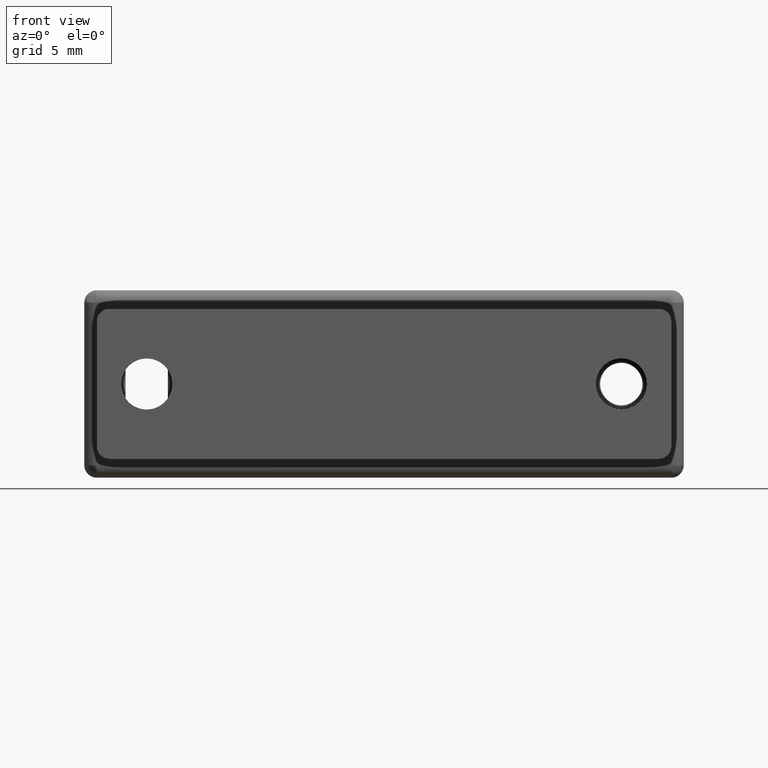
[diagram: clean part render]
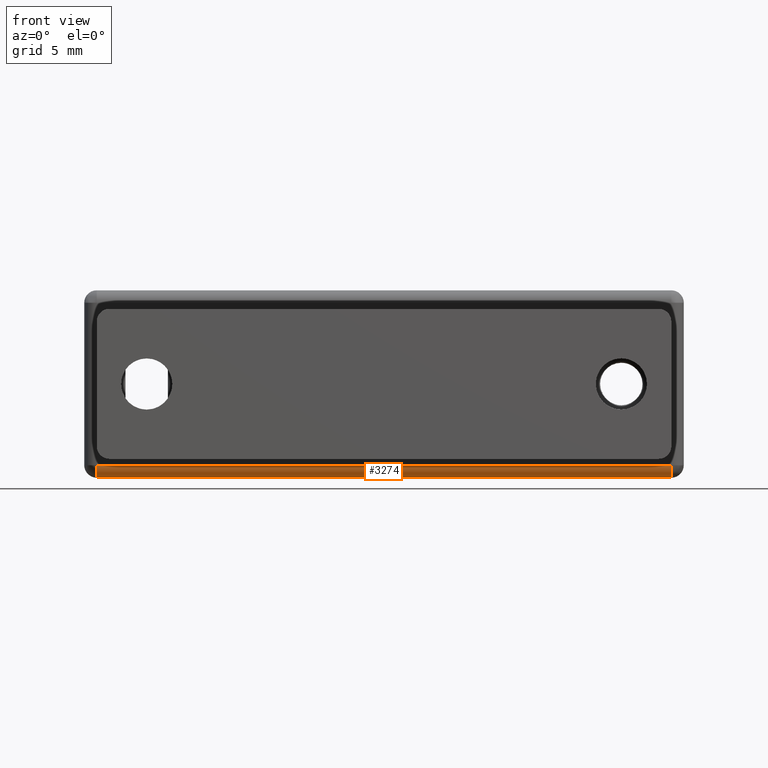
[diagram: same view with one face highlighted and labeled with its STEP entity id]
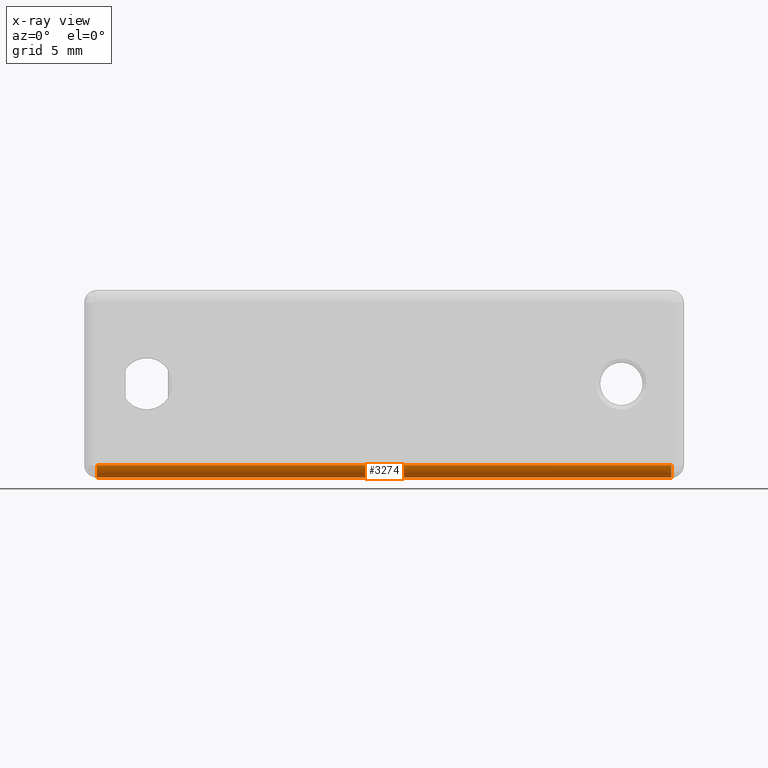
[diagram: x-ray of the same camera — body ghosted, the highlighted face saturated]
A machine part, front view. The second image highlights one B-rep face of the part: STEP entity #3274.
The next image is the same camera in x-ray: the body ghosted, the highlighted face saturated — about 0% of this face is hidden behind the body in this view.
In plain terms, the highlighted face is a freeform B-spline surface patch.
Its self-contained STEP definition (entity closure, byte-faithful):
#1938=CARTESIAN_POINT('',(-23.0,-3.500000000000000,-6.500000000000000));
#1939=VERTEX_POINT('',#1938);
#1940=CARTESIAN_POINT('',(23.0,-3.500000000000000,-6.500000000000000));
#1941=VERTEX_POINT('',#1940);
#1942=CARTESIAN_POINT('',(-23.0,-3.500000000000000,-6.500000000000000));
#1943=CARTESIAN_POINT('',(23.0,-3.500000000000000,-6.500000000000000));
#1944=QUASI_UNIFORM_CURVE('',1,(#1942,#1943),.UNSPECIFIED.,.F.,.U.);
#1945=EDGE_CURVE('',#1939,#1941,#1944,.T.);
#3139=CARTESIAN_POINT('',(-23.0,-2.500000000000000,-7.500000000000000));
#3140=VERTEX_POINT('',#3139);
#3209=CARTESIAN_POINT('',(-23.0,-2.500000000000000,-7.500000000000000));
#3210=CARTESIAN_POINT('',(-23.0,-2.589993281324365,-7.500025229356749));
#3211=CARTESIAN_POINT('',(-23.000000000000039,-2.786348606798781,-7.473344728236818));
#3212=CARTESIAN_POINT('',(-22.999999999999972,-3.034935320326319,-7.359505098081943));
#3213=CARTESIAN_POINT('',(-23.0,-3.217555506269791,-7.205764099495176));
#3214=CARTESIAN_POINT('',(-23.000000000000011,-3.345828496382976,-7.045495532104572));
#3215=CARTESIAN_POINT('',(-22.999999999999950,-3.463382936259702,-6.819007164849726));
#3216=CARTESIAN_POINT('',(-23.000000000000039,-3.500109281490712,-6.622735034317228));
#3217=CARTESIAN_POINT('',(-23.0,-3.500000000000000,-6.500000000000000));
#3218=B_SPLINE_CURVE_WITH_KNOTS('',3,(#3209,#3210,#3211,#3212,#3213,#3214,#3215,#3216,#3217),.UNSPECIFIED.,.F.,.U.,(4,1,1,1,1,1,4),(0.000000086228782,0.269985456171352,0.589074653021603,0.809950585864990,0.981761028777651,1.202671843889890,1.570835744339933),.UNSPECIFIED.);
#3219=EDGE_CURVE('',#3140,#1939,#3218,.T.);
#3237=CARTESIAN_POINT('',(-24.149999999999999,-2.473823051692127,-7.499657324975557));
#3238=CARTESIAN_POINT('',(24.178750000000001,-2.473823051692127,-7.499657324975557));
#3239=CARTESIAN_POINT('',(-24.150000000000006,-3.574984800554719,-7.528492260166261));
#3240=CARTESIAN_POINT('',(24.178749999999990,-3.574984800554719,-7.528492260166261));
#3241=CARTESIAN_POINT('',(-24.150000000000002,-3.497524479380810,-6.429679924374017));
#3242=CARTESIAN_POINT('',(24.178750000000001,-3.497524479380810,-6.429679924374017));
#3250=(BOUNDED_SURFACE()B_SPLINE_SURFACE(1,2,((#3237,#3239,#3241),(#3238,#3240,#3242)),.UNSPECIFIED.,.F.,.F.,.U.)B_SPLINE_SURFACE_WITH_KNOTS((2,2),(3,3),(0.0,48.328749999999999),(0.0,0.994518632334191),.UNSPECIFIED.)GEOMETRIC_REPRESENTATION_ITEM()RATIONAL_B_SPLINE_SURFACE(((1.0,0.670944223154768,0.996392648609106),(1.0,0.670944223154768,0.996392648609106)))REPRESENTATION_ITEM('')SURFACE());
#3251=CARTESIAN_POINT('',(23.0,-2.500000000000000,-7.500000000000000));
#3252=VERTEX_POINT('',#3251);
#3253=CARTESIAN_POINT('',(23.0,-2.500000000000000,-7.500000000000000));
#3254=CARTESIAN_POINT('',(23.0,-2.589993281324365,-7.500025229356749));
#3255=CARTESIAN_POINT('',(23.000000000000039,-2.786348606798781,-7.473344728236818));
#3256=CARTESIAN_POINT('',(22.999999999999972,-3.034935320326319,-7.359505098081943));
#3257=CARTESIAN_POINT('',(23.0,-3.217555506269791,-7.205764099495176));
#3258=CARTESIAN_POINT('',(23.000000000000011,-3.345828496382976,-7.045495532104572));
#3259=CARTESIAN_POINT('',(22.999999999999950,-3.463382936259702,-6.819007164849726));
#3260=CARTESIAN_POINT('',(23.000000000000039,-3.500109281490712,-6.622735034317228));
#3261=CARTESIAN_POINT('',(23.0,-3.500000000000000,-6.500000000000000));
#3262=B_SPLINE_CURVE_WITH_KNOTS('',3,(#3253,#3254,#3255,#3256,#3257,#3258,#3259,#3260,#3261),.UNSPECIFIED.,.F.,.U.,(4,1,1,1,1,1,4),(0.000000086228782,0.269985456171352,0.589074653021603,0.809950585864990,0.981761028777651,1.202671843889890,1.570835744339933),.UNSPECIFIED.);
#3263=EDGE_CURVE('',#3252,#1941,#3262,.T.);
#3264=ORIENTED_EDGE('',*,*,#3263,.T.);
#3265=ORIENTED_EDGE('',*,*,#1945,.F.);
#3266=ORIENTED_EDGE('',*,*,#3219,.F.);
#3267=CARTESIAN_POINT('',(23.0,-2.500000000000000,-7.500000000000000));
#3268=CARTESIAN_POINT('',(-23.0,-2.500000000000000,-7.500000000000000));
#3269=QUASI_UNIFORM_CURVE('',1,(#3267,#3268),.UNSPECIFIED.,.F.,.U.);
#3270=EDGE_CURVE('',#3252,#3140,#3269,.T.);
#3271=ORIENTED_EDGE('',*,*,#3270,.F.);
#3272=EDGE_LOOP('',(#3264,#3265,#3266,#3271));
#3273=FACE_OUTER_BOUND('',#3272,.T.);
#3274=ADVANCED_FACE('',(#3273),#3250,.T.);